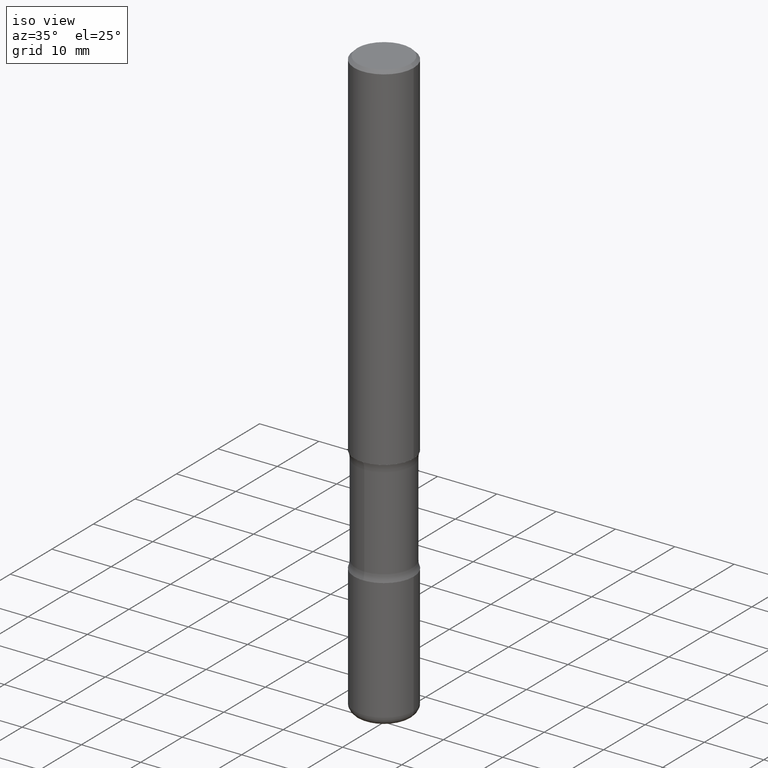
[diagram: clean part render]
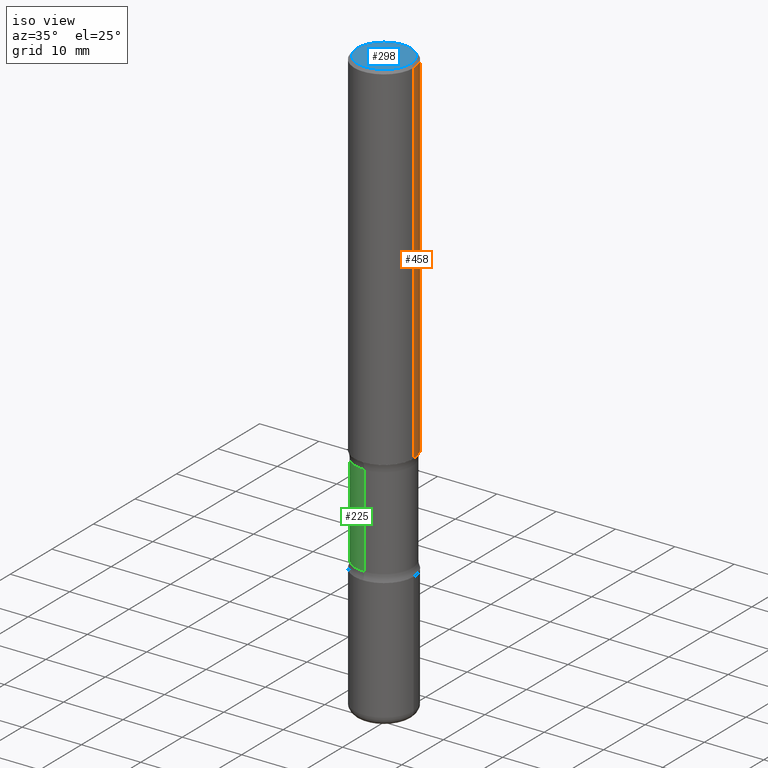
[diagram: same view with three faces highlighted in distinct colors, each labeled with its STEP entity id]
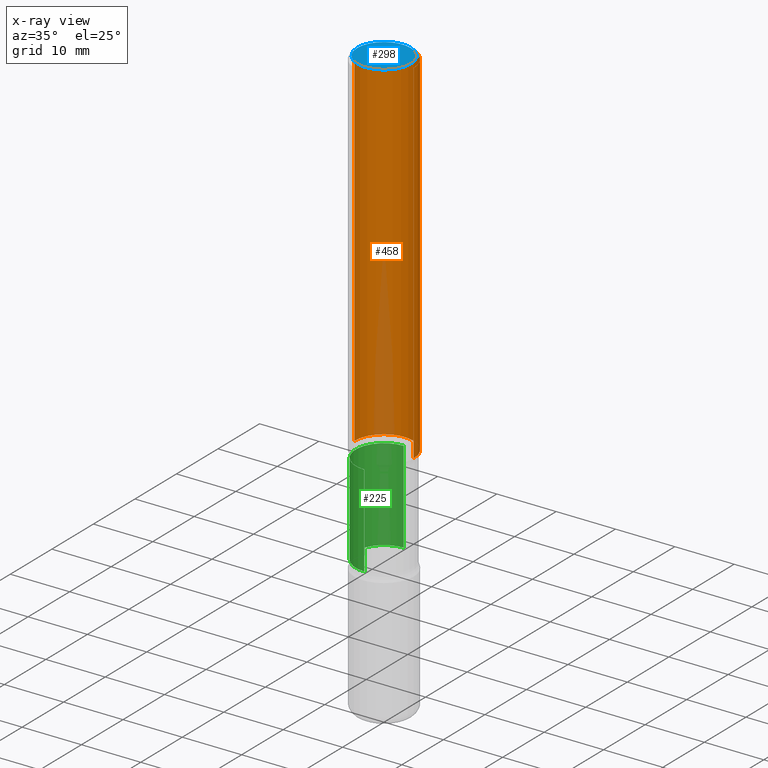
[diagram: x-ray of the same camera — body ghosted, the three highlighted faces saturated]
A machine part, iso view with three faces highlighted in distinct colors.
The next image is the same camera in x-ray (body ghosted, the three faces saturated) — at least one of them is partly hidden behind the body in this view.
Their STEP definitions:

[orange] entity #458 — the highlighted cylindrical surface (edge-blend (fillet) strip) has radius 5 mm, axis along (-0, 0, 1).
#3 = DIRECTION ( 'NONE',  ( -2.445468806185136597E-29, 3.491481338843145583E-15, 1.000000000000000000 ) ) ;
#7 = DIRECTION ( 'NONE',  ( 1.000000000000000000, -6.982962677686266711E-15, 0.000000000000000000 ) ) ;
#29 = DIRECTION ( 'NONE',  ( -2.445468806185136597E-29, 3.491481338843145583E-15, 1.000000000000000000 ) ) ;
#36 = CARTESIAN_POINT ( 'NONE',  ( 0.1968499999999999417, -1.420318657638188727E-15, -0.02000000000000006981 ) ) ;
#40 = CARTESIAN_POINT ( 'NONE',  ( -0.1968499999999999417, 1.304766576325678113E-15, -0.02000000000000006981 ) ) ;
#51 = ORIENTED_EDGE ( 'NONE', *, *, #315, .T. ) ;
#55 = ORIENTED_EDGE ( 'NONE', *, *, #541, .F. ) ;
#60 = CARTESIAN_POINT ( 'NONE',  ( 4.890937612370289799E-31, -6.982962677686315028E-17, -0.02000000000000006981 ) ) ;
#83 = CARTESIAN_POINT ( 'NONE',  ( 0.1968500000000000527, -1.374596203102542003E-15, 9.598753983154302260E-30 ) ) ;
#88 = DIRECTION ( 'NONE',  ( 1.000000000000000000, -6.982962677686266711E-15, 4.876176775795935793E-29 ) ) ;
#104 = CIRCLE ( 'NONE', #144, 0.1968500000000001082 ) ;
#117 = CARTESIAN_POINT ( 'NONE',  ( -0.1968500000000001360, -2.760000047352310125E-15, -2.362200000000000077 ) ) ;
#126 = VECTOR ( 'NONE', #369, 39.37007874015748143 ) ;
#144 = AXIS2_PLACEMENT_3D ( 'NONE', #195, #29, #545 ) ;
#169 = EDGE_CURVE ( 'NONE', #304, #264, #104, .T. ) ;
#176 = ORIENTED_EDGE ( 'NONE', *, *, #169, .T. ) ;
#192 = VECTOR ( 'NONE', #252, 39.37007874015748143 ) ;
#195 = CARTESIAN_POINT ( 'NONE',  ( 5.776686413970529753E-29, -8.247577218615279626E-15, -2.362200000000000077 ) ) ;
#252 = DIRECTION ( 'NONE',  ( -2.445468806185136877E-29, 3.491481338843145188E-15, 1.000000000000000000 ) ) ;
#264 = VERTEX_POINT ( 'NONE', #117 ) ;
#284 = AXIS2_PLACEMENT_3D ( 'NONE', #60, #3, #7 ) ;
#291 = LINE ( 'NONE', #457, #126 ) ;
#304 = VERTEX_POINT ( 'NONE', #496 ) ;
#308 = DIRECTION ( 'NONE',  ( -2.445468806185136597E-29, 3.491481338843145583E-15, 1.000000000000000000 ) ) ;
#315 = EDGE_CURVE ( 'NONE', #264, #395, #291, .T. ) ;
#335 = ORIENTED_EDGE ( 'NONE', *, *, #472, .F. ) ;
#346 = VERTEX_POINT ( 'NONE', #36 ) ;
#369 = DIRECTION ( 'NONE',  ( -2.445468806185136877E-29, 3.491481338843145188E-15, 1.000000000000000000 ) ) ;
#395 = VERTEX_POINT ( 'NONE', #40 ) ;
#436 = CARTESIAN_POINT ( 'NONE',  ( 0.000000000000000000, 0.000000000000000000, 0.000000000000000000 ) ) ;
#440 = AXIS2_PLACEMENT_3D ( 'NONE', #436, #308, #88 ) ;
#457 = CARTESIAN_POINT ( 'NONE',  ( -0.1968500000000000527, 1.398703375343757590E-15, -9.682923725166785079E-30 ) ) ;
#458 = ADVANCED_FACE ( 'NONE', ( #474 ), #507, .T. ) ;
#465 = LINE ( 'NONE', #83, #192 ) ;
#472 = EDGE_CURVE ( 'NONE', #304, #346, #465, .T. ) ;
#474 = FACE_OUTER_BOUND ( 'NONE', #515, .T. ) ;
#496 = CARTESIAN_POINT ( 'NONE',  ( 0.1968500000000001082, -9.622173421717821235E-15, -2.362200000000000077 ) ) ;
#507 = CYLINDRICAL_SURFACE ( 'NONE', #440, 0.1968500000000000527 ) ;
#515 = EDGE_LOOP ( 'NONE', ( #176, #51, #55, #335 ) ) ;
#541 = EDGE_CURVE ( 'NONE', #346, #395, #555, .T. ) ;
#545 = DIRECTION ( 'NONE',  ( 1.000000000000000000, -6.982962677686265133E-15, 0.000000000000000000 ) ) ;
#555 = CIRCLE ( 'NONE', #284, 0.1968499999999999417 ) ;

[blue] entity #298 — the highlighted planar face has unit normal (0, -0, -1).
#28 = EDGE_CURVE ( 'NONE', #167, #265, #44, .T. ) ;
#39 = ORIENTED_EDGE ( 'NONE', *, *, #492, .T. ) ;
#44 = CIRCLE ( 'NONE', #110, 0.1768499999999998962 ) ;
#69 = FACE_OUTER_BOUND ( 'NONE', #345, .T. ) ;
#73 = AXIS2_PLACEMENT_3D ( 'NONE', #373, #237, #247 ) ;
#110 = AXIS2_PLACEMENT_3D ( 'NONE', #138, #133, #445 ) ;
#116 = CARTESIAN_POINT ( 'NONE',  ( -0.1768499999999998962, 1.269851762937246858E-15, 4.268512490091652920E-18 ) ) ;
#124 = DIRECTION ( 'NONE',  ( -2.445468806185136597E-29, 3.491481338843145583E-15, 1.000000000000000000 ) ) ;
#133 = DIRECTION ( 'NONE',  ( -2.445468806185136597E-29, 3.491481338843145583E-15, 1.000000000000000000 ) ) ;
#137 = CIRCLE ( 'NONE', #424, 0.1768499999999998962 ) ;
#138 = CARTESIAN_POINT ( 'NONE',  ( -1.043851414335219820E-46, 1.490343170380447200E-32, 4.268512490100411279E-18 ) ) ;
#167 = VERTEX_POINT ( 'NONE', #116 ) ;
#191 = PLANE ( 'NONE',  #73 ) ;
#237 = DIRECTION ( 'NONE',  ( 2.438088387897960049E-29, -3.491481338843145188E-15, -1.000000000000000000 ) ) ;
#247 = DIRECTION ( 'NONE',  ( -1.000000000000000000, 6.982962677686265922E-15, -4.876176775795935793E-29 ) ) ;
#260 = ORIENTED_EDGE ( 'NONE', *, *, #28, .T. ) ;
#265 = VERTEX_POINT ( 'NONE', #544 ) ;
#298 = ADVANCED_FACE ( 'NONE', ( #69 ), #191, .F. ) ;
#306 = DIRECTION ( 'NONE',  ( 1.000000000000000000, -6.982962677686266711E-15, 4.875932113059880811E-29 ) ) ;
#345 = EDGE_LOOP ( 'NONE', ( #260, #39 ) ) ;
#373 = CARTESIAN_POINT ( 'NONE',  ( 1.234936949548815209E-15, 0.1768499999999998962, -6.153342185293597578E-16 ) ) ;
#424 = AXIS2_PLACEMENT_3D ( 'NONE', #430, #124, #306 ) ;
#430 = CARTESIAN_POINT ( 'NONE',  ( -1.043851414335219820E-46, 1.490343170380447200E-32, 4.268512490100411279E-18 ) ) ;
#445 = DIRECTION ( 'NONE',  ( 1.000000000000000000, -6.982962677686266711E-15, 4.875932113059880811E-29 ) ) ;
#492 = EDGE_CURVE ( 'NONE', #265, #167, #137, .T. ) ;
#544 = CARTESIAN_POINT ( 'NONE',  ( 0.1768499999999998962, -1.316798864272041549E-15, 4.268512490109333727E-18 ) ) ;

[green] entity #225 — the highlighted cylindrical surface (edge-blend (fillet) strip) has radius 4.7498 mm, axis along (0, -0, -1).
#26 = EDGE_CURVE ( 'NONE', #185, #134, #362, .T. ) ;
#32 = FACE_OUTER_BOUND ( 'NONE', #392, .T. ) ;
#34 = AXIS2_PLACEMENT_3D ( 'NONE', #514, #125, #350 ) ;
#46 = VECTOR ( 'NONE', #379, 39.37007874015748143 ) ;
#77 = DIRECTION ( 'NONE',  ( 6.982962677686266711E-15, 1.000000000000000000, -2.921762560068729017E-15 ) ) ;
#107 = LINE ( 'NONE', #200, #46 ) ;
#121 = CARTESIAN_POINT ( 'NONE',  ( 1.305814020727390771E-15, 0.1869999999999916174, -2.410836174808470567 ) ) ;
#125 = DIRECTION ( 'NONE',  ( 2.540626945080028130E-29, -3.355209467880746123E-15, -1.000000000000000000 ) ) ;
#134 = VERTEX_POINT ( 'NONE', #449 ) ;
#141 = CARTESIAN_POINT ( 'NONE',  ( -1.282913125583179628E-15, -0.1870000000000137108, -3.936999999999999389 ) ) ;
#146 = CYLINDRICAL_SURFACE ( 'NONE', #311, 0.1870000000000000828 ) ;
#185 = VERTEX_POINT ( 'NONE', #454 ) ;
#190 = VERTEX_POINT ( 'NONE', #242 ) ;
#200 = CARTESIAN_POINT ( 'NONE',  ( 1.305814020727429425E-15, 0.1869999999999864548, -3.937000000000000721 ) ) ;
#218 = AXIS2_PLACEMENT_3D ( 'NONE', #295, #460, #77 ) ;
#220 = DIRECTION ( 'NONE',  ( 2.540626945080028130E-29, -3.355209467880745729E-15, -1.000000000000000000 ) ) ;
#225 = ADVANCED_FACE ( 'NONE', ( #32 ), #146, .T. ) ;
#238 = DIRECTION ( 'NONE',  ( 2.540626945080028130E-29, -3.355209467880746123E-15, -1.000000000000000000 ) ) ;
#242 = CARTESIAN_POINT ( 'NONE',  ( 1.305814020727405957E-15, 0.1869999999999895079, -3.022263825191530806 ) ) ;
#256 = EDGE_CURVE ( 'NONE', #469, #190, #107, .T. ) ;
#295 = CARTESIAN_POINT ( 'NONE',  ( 5.832814217159742143E-29, -8.507337647765213396E-15, -2.410836174808470123 ) ) ;
#301 = ORIENTED_EDGE ( 'NONE', *, *, #334, .T. ) ;
#309 = VECTOR ( 'NONE', #220, 39.37007874015748143 ) ;
#311 = AXIS2_PLACEMENT_3D ( 'NONE', #504, #238, #416 ) ;
#334 = EDGE_CURVE ( 'NONE', #185, #469, #499, .T. ) ;
#350 = DIRECTION ( 'NONE',  ( 6.982962677686266711E-15, 1.000000000000000000, -2.921762560068729806E-15 ) ) ;
#351 = ORIENTED_EDGE ( 'NONE', *, *, #359, .F. ) ;
#352 = ORIENTED_EDGE ( 'NONE', *, *, #26, .F. ) ;
#359 = EDGE_CURVE ( 'NONE', #134, #190, #367, .T. ) ;
#362 = LINE ( 'NONE', #141, #309 ) ;
#367 = CIRCLE ( 'NONE', #34, 0.1870000000000000551 ) ;
#379 = DIRECTION ( 'NONE',  ( 2.540626945080028130E-29, -3.355209467880745729E-15, -1.000000000000000000 ) ) ;
#392 = EDGE_LOOP ( 'NONE', ( #352, #301, #467, #351 ) ) ;
#416 = DIRECTION ( 'NONE',  ( 6.982962677686266711E-15, 1.000000000000000000, -2.921762560068729411E-15 ) ) ;
#449 = CARTESIAN_POINT ( 'NONE',  ( -1.316701078222226890E-15, -0.1870000000000106022, -3.022263825191529918 ) ) ;
#454 = CARTESIAN_POINT ( 'NONE',  ( -1.316701078222244837E-15, -0.1870000000000086315, -2.410836174808469679 ) ) ;
#460 = DIRECTION ( 'NONE',  ( 2.540626945080028130E-29, -3.355209467880746123E-15, -1.000000000000000000 ) ) ;
#467 = ORIENTED_EDGE ( 'NONE', *, *, #256, .T. ) ;
#469 = VERTEX_POINT ( 'NONE', #121 ) ;
#499 = CIRCLE ( 'NONE', #218, 0.1870000000000001106 ) ;
#504 = CARTESIAN_POINT ( 'NONE',  ( 9.710227154047748282E-29, -1.362793696358492956E-14, -3.937000000000000277 ) ) ;
#514 = CARTESIAN_POINT ( 'NONE',  ( 7.386223780689915972E-29, -1.055880548925453445E-14, -3.022263825191530362 ) ) ;